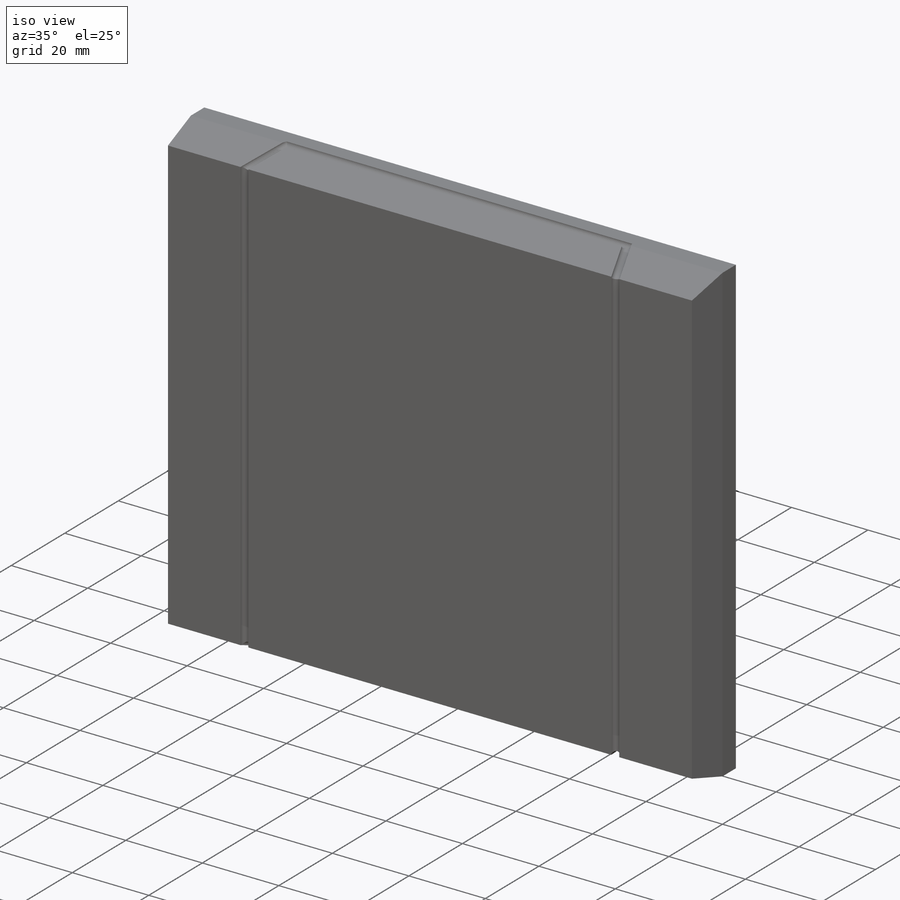
[diagram: iso view]
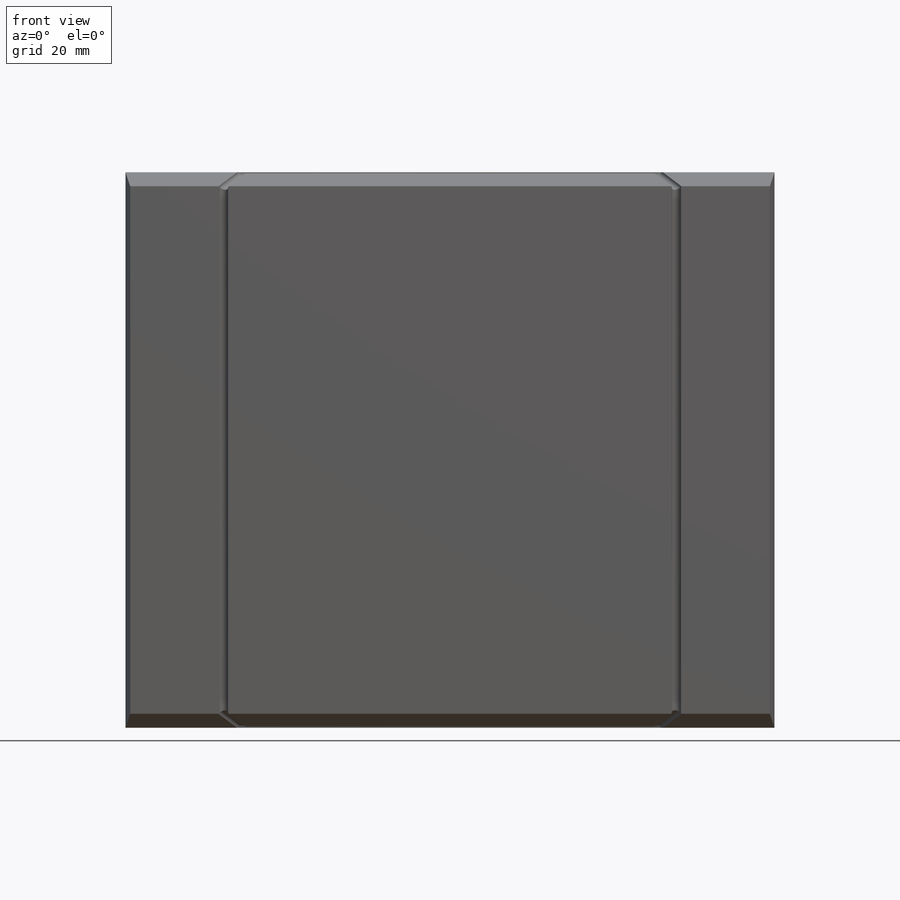
[diagram: front view]
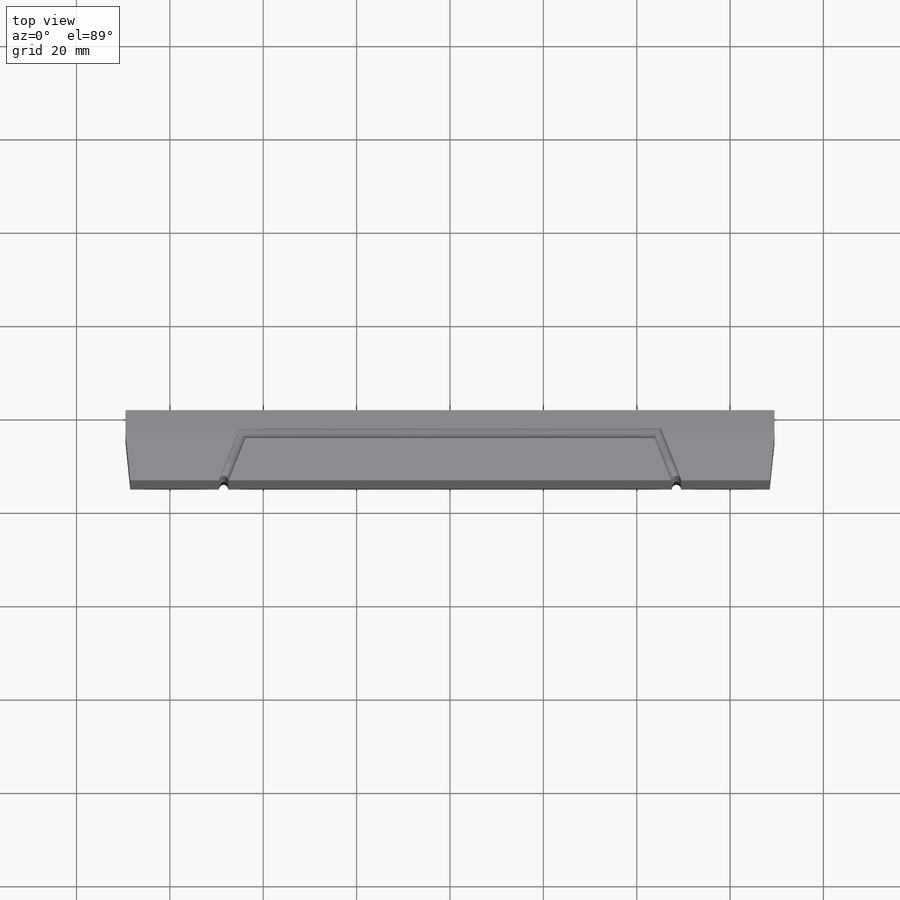
[diagram: top view]
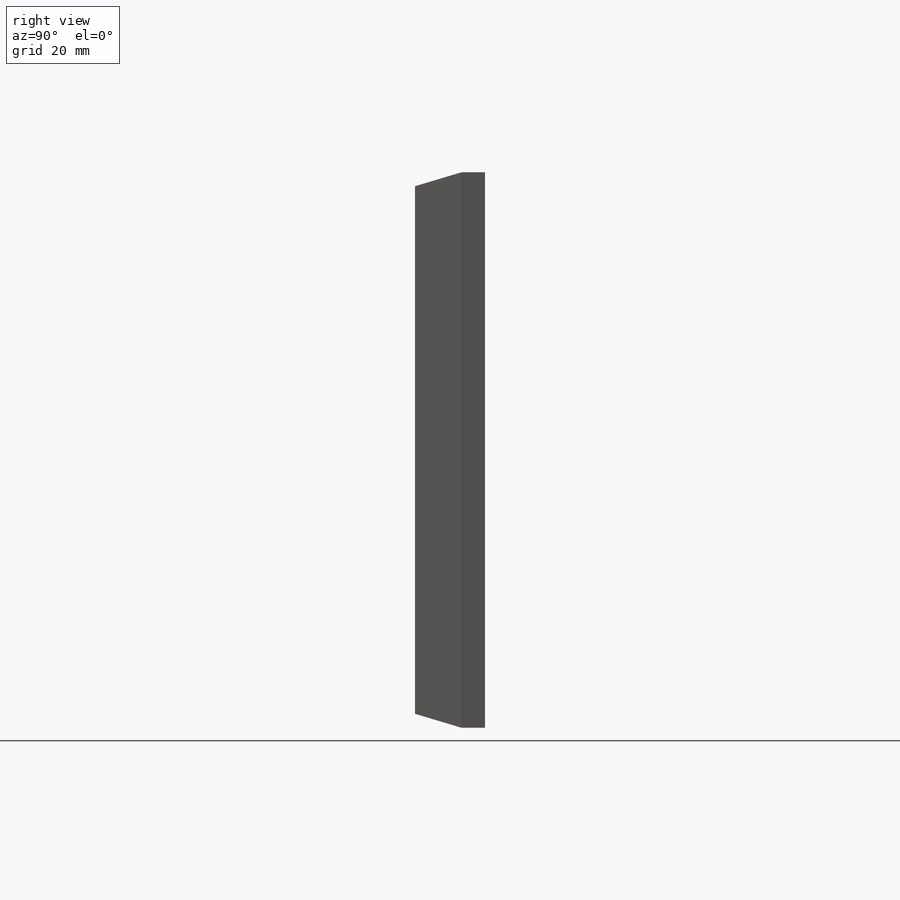
[diagram: right view]
SOLIDWORKS PART (.sldprt)
format: sldprt  version: not decoded by parser v0  size: 203,264 bytes
history: native  units: mm
features: sketch x5, plane x4, material x1, extrude x1, sweep x1 (+8 scaffold rows collapsed)
feature tree (20):
  scaffold x8  (default folders/planes/origin — collapsed)
  material  "Material <nicht festgelegt>"
  plane  "Ebene vorne"
  plane  "Ebene oben"
  plane  "Ebene rechts"
  sketch  "Skizze1"  dims[D1=139.0mm D2=119.0mm]
  extrude  "Aufsatz-Linear austragen1"  Depth=5mm
  sketch  "Skizze2"
  plane  "Ebene1"  Offset=10mm
  sketch  "Skizze3"  dims[D1=137.0mm D2=113.0mm]
  sketch  "3D-Skizze1"  dims[c1.D1=113.0mm c2.D1=~104.782442deg c3.D1=20.0mm c3.D2=26.0mm c3.D3=26.0mm c3.D4=20.0mm c3.D5=26.0mm c3.D6=26.0mm]
  sketch  "Skizze4"  dims[D1=2.0mm]
  sweep  "Schnitt-Austragung1"
decode coverage: 5 of 7 modeling features carry decoded parameters
note: ~ marks probable driven/reference dimensions
note: suppression state not decoded; provenance and decode notes live in map.json
